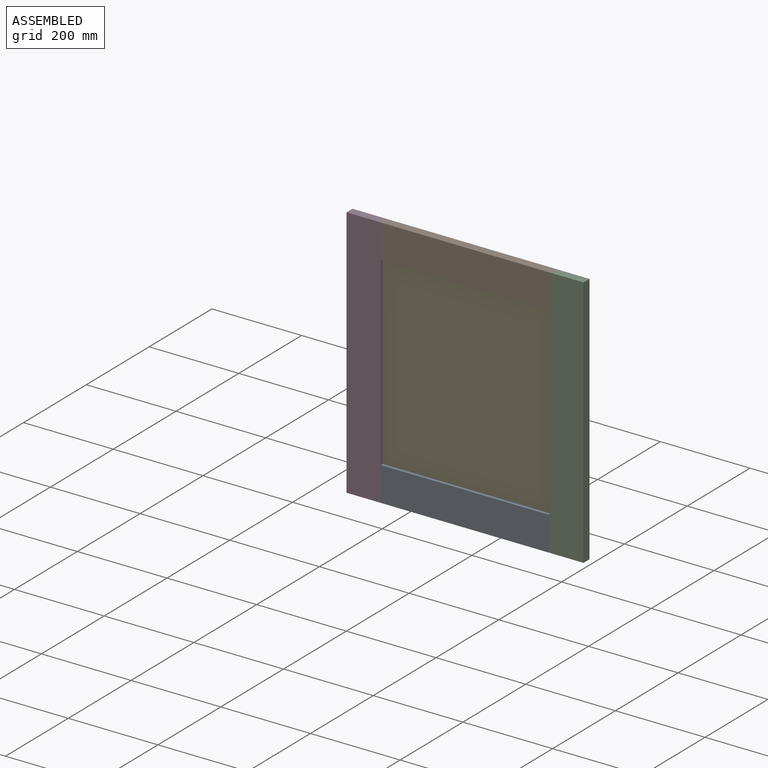
[diagram: assembled view]
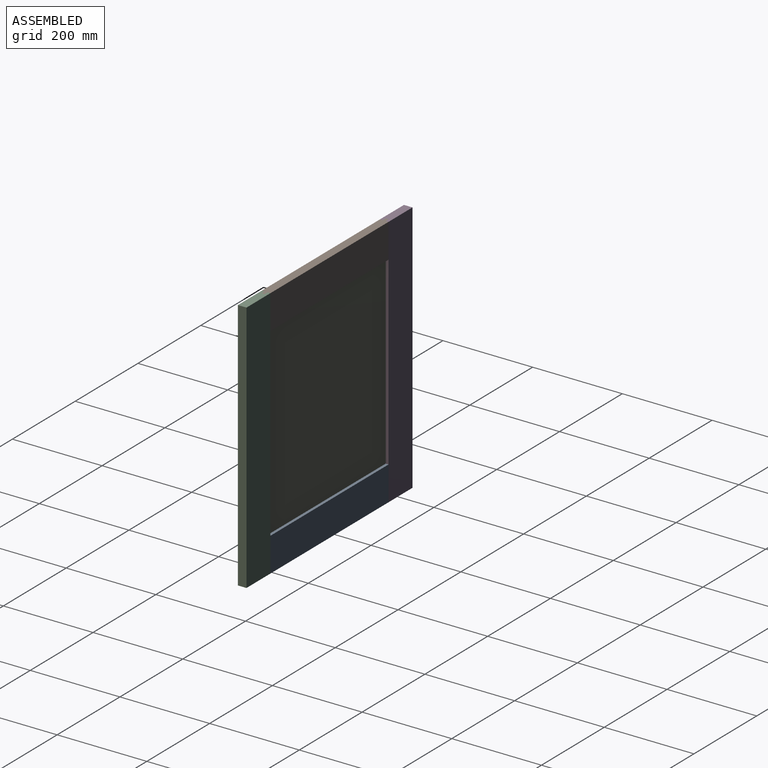
[diagram: assembled view, second angle]
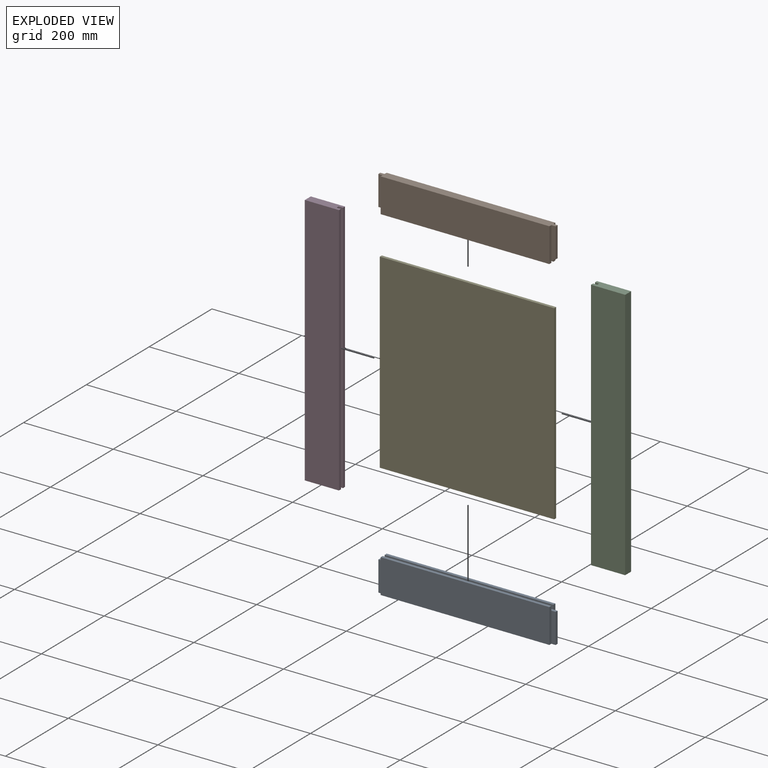
[diagram: exploded view]
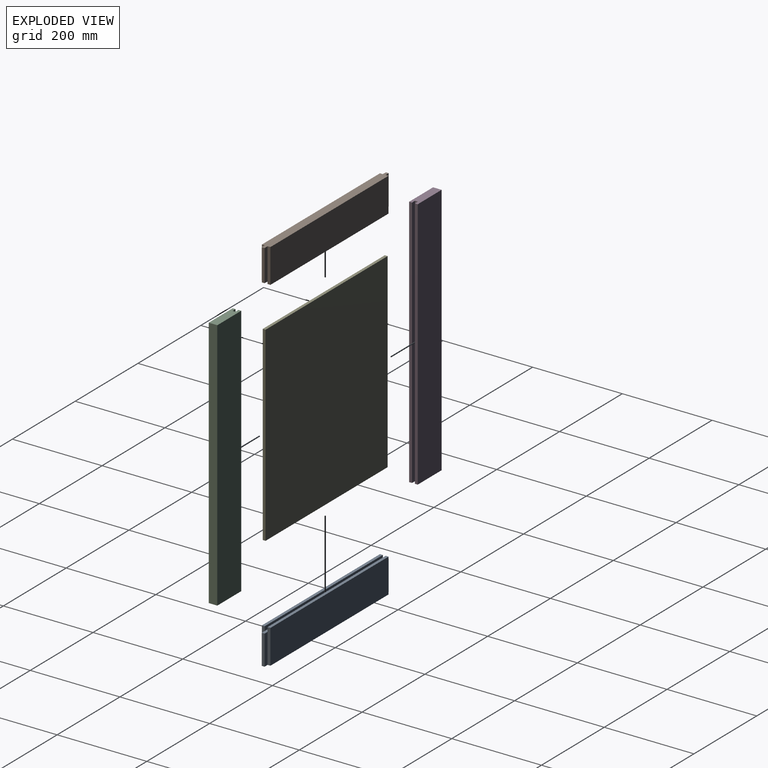
[diagram: exploded view, second angle]
ASSEMBLY  parts=5 mates=4
PART A: 18 faces, bbox 395.3x19.1x76.2 mm
  f0: plane 76.2x6.35mm, normal (1,0,0), area 483.9mm2, adj f2,f4,f7,f11,f15
  f1: plane 76.2x6.35mm, normal (-1,0,0), area 483.9mm2, adj f2,f4,f7,f11,f13
  f2: plane 376.24x6.35mm, normal (0,0,1), area 2389.1mm2, adj f0,f1,f7,f11
  f3: plane 76.2x6.35mm, normal (-1,0,0), area 483.9mm2, adj f4,f6,f8,f9,f12
  f4: plane 395.29x19.05mm, normal (0,0,-1), area 7288.3mm2, adj f0,f1,f3,f5,f7,f8,f12,f13
  f5: plane 76.2x6.35mm, normal (1,0,0), area 483.9mm2, adj f4,f6,f8,f9,f16
  f6: plane 376.24x6.35mm, normal (0,0,1), area 2389.1mm2, adj f3,f5,f8,f9
  f7: plane 376.24x76.2mm, normal (0,-1,0), area 28669.3mm2, adj f0,f1,f2,f4
  f8: plane 376.24x76.2mm, normal (0,1,0), area 28669.3mm2, adj f3,f4,f5,f6
  f9: plane 376.24x9.53mm, normal (0,-1,0), area 3583.7mm2, adj f3,f5,f6,f10
  f10: plane 395.29x6.35mm, normal (0,0,1), area 2510.1mm2, adj f9,f11,f12,f13,f14,f15,f16,f17
  f11: plane 376.24x9.53mm, normal (0,1,0), area 3583.7mm2, adj f0,f1,f2,f10
  f12: plane 66.68x9.53mm, normal (0,1,0), area 635.1mm2, adj f3,f4,f10,f14
  f13: plane 66.68x9.53mm, normal (0,-1,0), area 635.1mm2, adj f1,f4,f10,f14
  f14: plane 66.68x6.35mm, normal (-1,0,0), area 423.4mm2, adj f4,f10,f12,f13
  f15: plane 66.68x9.53mm, normal (0,-1,0), area 635.1mm2, adj f0,f4,f10,f17
  f16: plane 66.68x9.53mm, normal (0,1,0), area 635.1mm2, adj f4,f5,f10,f17
  f17: plane 66.68x6.35mm, normal (1,0,0), area 423.4mm2, adj f4,f10,f15,f16
PART B: same geometry as A
PART C: 10 faces, bbox 76.2x19.1x565.2 mm
  f0: plane 565.15x6.35mm, normal (-1,0,0), area 3588.7mm2, adj f1,f2,f5,f7
  f1: plane 76.2x19.05mm, normal (0,0,-1), area 1391.1mm2, adj f0,f3,f4,f5,f6,f7,f8,f9
  f2: plane 76.2x19.05mm, normal (0,0,1), area 1391.1mm2, adj f0,f3,f4,f5,f6,f7,f8,f9
  f3: plane 565.15x6.35mm, normal (-1,0,0), area 3588.7mm2, adj f1,f2,f6,f8
  f4: plane 565.15x19.05mm, normal (1,0,0), area 10766.1mm2, adj f1,f2,f5,f6
  f5: plane 565.15x76.2mm, normal (0,-1,0), area 43064.4mm2, adj f0,f1,f2,f4
  f6: plane 565.15x76.2mm, normal (0,1,0), area 43064.4mm2, adj f1,f2,f3,f4
  f7: plane 565.15x9.53mm, normal (0,1,0), area 5383.1mm2, adj f0,f1,f2,f9
  f8: plane 565.15x9.53mm, normal (0,-1,0), area 5383.1mm2, adj f1,f2,f3,f9
  f9: plane 565.15x6.35mm, normal (-1,0,0), area 3588.7mm2, adj f1,f2,f7,f8
PART D: same geometry as C
PART E: 6 faces, bbox 388.9x6.4x425.5 mm
  f0: plane 425.45x6.35mm, normal (-1,0,0), area 2701.6mm2, adj f1,f3,f4,f5
  f1: plane 388.94x6.35mm, normal (0,0,-1), area 2469.8mm2, adj f0,f2,f4,f5
  f2: plane 425.45x6.35mm, normal (1,0,0), area 2701.6mm2, adj f1,f3,f4,f5
  f3: plane 388.94x6.35mm, normal (0,0,1), area 2469.8mm2, adj f0,f2,f4,f5
  f4: plane 425.45x388.94mm, normal (0,-1,0), area 165473.5mm2, adj f0,f1,f2,f3
  f5: plane 425.45x388.94mm, normal (0,1,0), area 165473.5mm2, adj f0,f1,f2,f3
PLACE A t=(-423.81,162.3,-121.41)mm fixed
PLACE B rot(axis=(0,1,0),180deg) t=(-47.57,162.3,443.74)mm
PLACE C t=(-47.57,162.3,-121.41)mm
PLACE D rot(axis=(0,0,1),180deg) t=(-423.81,143.25,-121.41)mm
PLACE E t=(-430.16,155.95,-54.73)mm
MATE fastened C.f9 <-> B.f14  axis (-1,0,0) through (-38.05,152.77,443.74)mm
MATE fastened A.f17 <-> C.f9  axis (1,0,0) through (-38.05,152.77,-121.41)mm
MATE fastened A.f14 <-> D.f9  axis (-1,0,0) through (-433.34,152.77,-121.41)mm
MATE fastened A.f10 <-> E.f1  axis (0,0,1) through (-235.69,152.77,-54.73)mm
